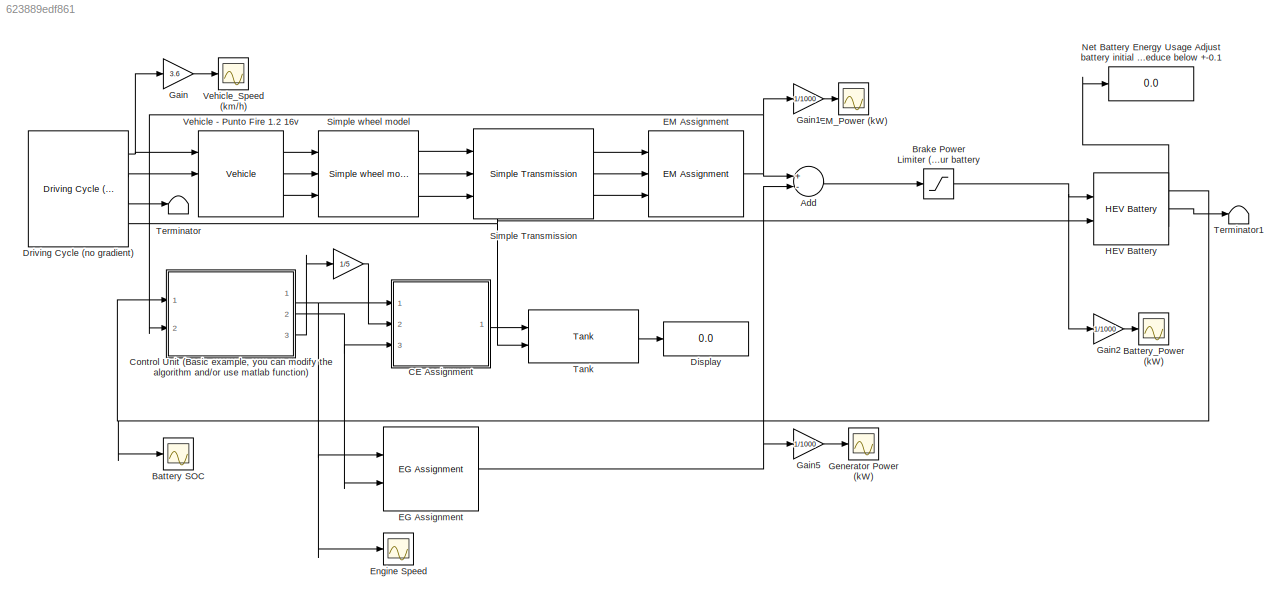
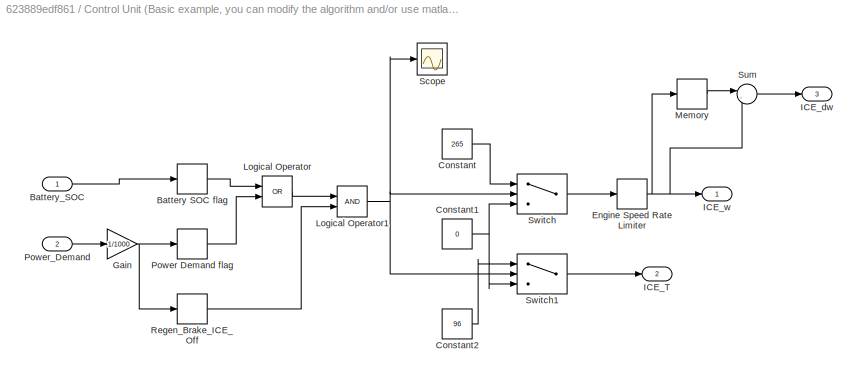
MODEL slx_623889edf861
KIND model
CONFIG AbsTol = auto
CONFIG EnableMultiTasking = off
CONFIG FixedStep = auto
CONFIG MaxStep = auto
CONFIG MinStep = auto
CONFIG RelTol = 1e-3
CONFIG SampleTimeConstraint = Unconstrained
CONFIG Solver = VariableStepAuto
CONFIG SolverName = VariableStepAuto
CONFIG StartTime = 0.0
CONFIG StopTime = 1061
BLOCK [Gain]  
  Gain = 1/5
  OutDataTypeStr = Inherit: Inherit via internal rule
  ParamDataTypeStr = Inherit: Inherit via internal rule
  SaturateOnIntegerOverflow = off
BLOCK [Sum] Add
  InputSameDT = off
  Inputs = +-
  OutDataTypeStr = Inherit: Inherit via internal rule
  Ports = [2, 1]
  SaturateOnIntegerOverflow = off
BLOCK [Scope] Battery SOC
  Floating = off
  NumInputPorts = 1
  Ports = [1]
  ScopeSpecificationString = Simulink.scopes.TimeScopeBlockCfg('CurrentConfiguration', extmgr.ConfigurationSet(extmgr.Configuration('Core','General UI',true),extmgr.Configuration('Core','Source UI',true),extmgr.Configuration('Sources','WiredSimulink',true,'DataLoggingVariableName','ScopeData1'),extmgr.Configuration('Visuals','Time Domain',true,'SerializedDisplays',{struct('MinYLimReal','0.58191','MaxYLimReal','0.71991','YLabe...<+1424ch>
BLOCK [Scope] Battery_Power (kW)
  Floating = off
  NumInputPorts = 1
  Ports = [1]
  ScopeSpecificationString = Simulink.scopes.TimeScopeBlockCfg('CurrentConfiguration', extmgr.ConfigurationSet(extmgr.Configuration('Core','General UI',true),extmgr.Configuration('Core','Source UI',true),extmgr.Configuration('Sources','WiredSimulink',true,'DataLoggingVariableName','ScopeData2'),extmgr.Configuration('Visuals','Time Domain',true,'SerializedDisplays',{struct('MinYLimReal','-37.4009','MaxYLimReal','37.06032','YLa...<+1397ch>
BLOCK [Saturate] Brake Power Limiter (W) Set a suitable lower value for your battery
  InputPortMap = u0
  LowerLimit = -40000
  Ports = [1, 1]
  UpperLimit = 500000
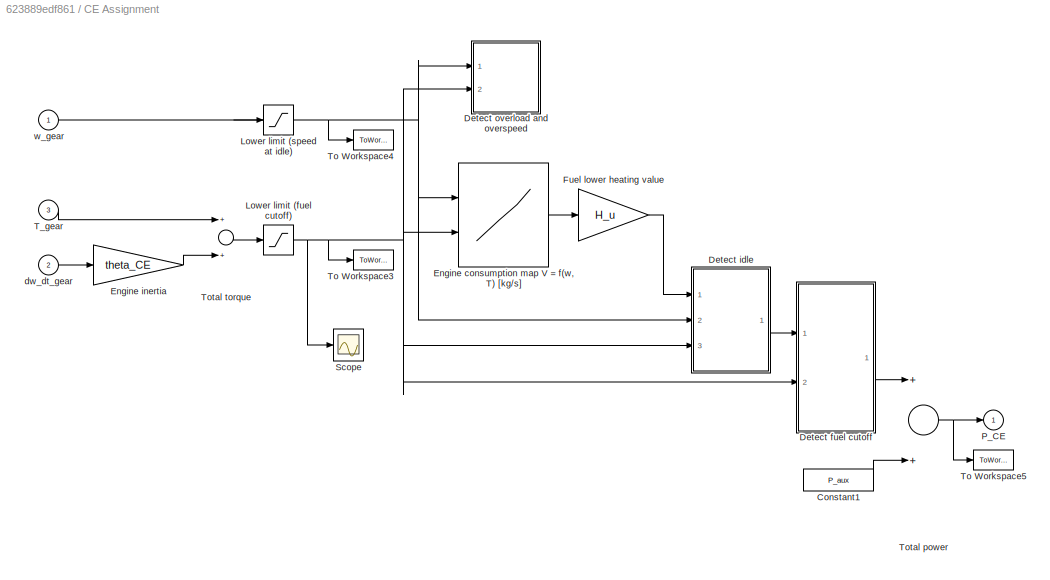
BLOCK [SubSystem] CE Assignment
  AncestorBlock = qss_tb_library/Energy Converter/CE Assignment
  Ports = [3, 1]
  RequestExecContextInheritance = off
  Tag = combustion engine
BLOCK [Constant] CE Assignment/Constant1
  Value = P_aux
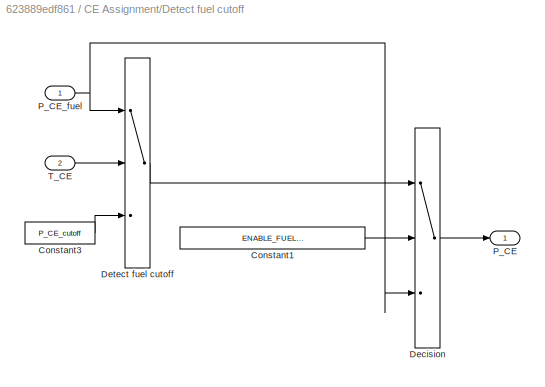
BLOCK [SubSystem] CE Assignment/Detect fuel cutoff
  Ports = [2, 1]
  RequestExecContextInheritance = off
BLOCK [Constant] CE Assignment/Detect fuel cutoff/Constant1
  Value = ENABLE_FUEL_CUTOFF
BLOCK [Constant] CE Assignment/Detect fuel cutoff/Constant3
  Value = P_CE_cutoff
BLOCK [Switch] CE Assignment/Detect fuel cutoff/Decision
  InputSameDT = off
  SaturateOnIntegerOverflow = off
  Threshold = 0.5
BLOCK [Switch] CE Assignment/Detect fuel cutoff/Detect fuel cutoff
  Threshold = T_CE_cutoff + 0.01
BLOCK [Outport] CE Assignment/Detect fuel cutoff/P_CE
  IconDisplay = Port number
BLOCK [Inport] CE Assignment/Detect fuel cutoff/P_CE_fuel
  IconDisplay = Port number
BLOCK [Inport] CE Assignment/Detect fuel cutoff/T_CE
  IconDisplay = Port number
  Port = 2
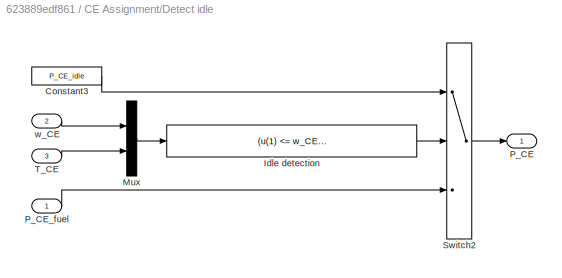
BLOCK [SubSystem] CE Assignment/Detect idle
  Ports = [3, 1]
  RequestExecContextInheritance = off
BLOCK [Constant] CE Assignment/Detect idle/Constant3
  Value = P_CE_idle
BLOCK [Fcn] CE Assignment/Detect idle/Idle detection
  Expr = (u(1) <= w_CE_idle) * (u(2) <= T_CE_idle)
BLOCK [Mux] CE Assignment/Detect idle/Mux
  DisplayOption = bar
  Inputs = 2
  Ports = [2, 1]
BLOCK [Outport] CE Assignment/Detect idle/P_CE
  IconDisplay = Port number
  InitialOutput = 0
BLOCK [Inport] CE Assignment/Detect idle/P_CE_fuel
  IconDisplay = Port number
BLOCK [Switch] CE Assignment/Detect idle/Switch2
  Threshold = 0.5
BLOCK [Inport] CE Assignment/Detect idle/T_CE
  IconDisplay = Port number
  Port = 3
BLOCK [Inport] CE Assignment/Detect idle/w_CE
  IconDisplay = Port number
  Port = 2
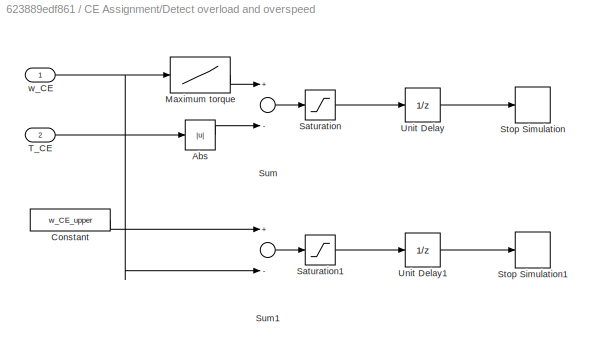
BLOCK [SubSystem] CE Assignment/Detect overload and overspeed
  Ports = [2]
  RequestExecContextInheritance = off
BLOCK [Abs] CE Assignment/Detect overload and overspeed/Abs
BLOCK [Constant] CE Assignment/Detect overload and overspeed/Constant
  Value = w_CE_upper
BLOCK [Lookup] CE Assignment/Detect overload and overspeed/Maximum torque
  InputValues = w_CE_max
  Table = T_CE_max
BLOCK [Saturate] CE Assignment/Detect overload and overspeed/Saturation
  InputPortMap = u0
  LowerLimit = -inf
  Ports = [1, 1]
  UpperLimit = 0
BLOCK [Saturate] CE Assignment/Detect overload and overspeed/Saturation1
  InputPortMap = u0
  LowerLimit = -inf
  Ports = [1, 1]
  UpperLimit = 0
BLOCK [Stop] CE Assignment/Detect overload and overspeed/Stop Simulation
BLOCK [Stop] CE Assignment/Detect overload and overspeed/Stop Simulation1
BLOCK [Sum] CE Assignment/Detect overload and overspeed/Sum
  Inputs = +-
  Ports = [2, 1]
BLOCK [Sum] CE Assignment/Detect overload and overspeed/Sum1
  Inputs = +-
  Ports = [2, 1]
BLOCK [Inport] CE Assignment/Detect overload and overspeed/T_CE
  IconDisplay = Port number
  Port = 2
BLOCK [UnitDelay] CE Assignment/Detect overload and overspeed/Unit Delay
  HasFrameUpgradeWarning = on
  SampleTime = -1
BLOCK [UnitDelay] CE Assignment/Detect overload and overspeed/Unit Delay1
  HasFrameUpgradeWarning = on
  SampleTime = -1
BLOCK [Inport] CE Assignment/Detect overload and overspeed/w_CE
  IconDisplay = Port number
BLOCK [Lookup2D] CE Assignment/Engine consumption map V = f(w, T) [kg//s]
  ColumnIndex = T_CE_col
  InputSameDT = off
  RowIndex = w_CE_row
  SaturateOnIntegerOverflow = off
  Table = V_CE_map
BLOCK [Gain] CE Assignment/Engine inertia
  Gain = theta_CE
BLOCK [Gain] CE Assignment/Fuel lower heating value
  Gain = H_u
BLOCK [Saturate] CE Assignment/Lower limit (fuel cutoff)
  InputPortMap = u0
  LowerLimit = T_CE_cutoff
  Ports = [1, 1]
  UpperLimit = inf
BLOCK [Saturate] CE Assignment/Lower limit (speed at idle)
  InputPortMap = u0
  LowerLimit = w_CE_idle
  Ports = [1, 1]
  UpperLimit = inf
BLOCK [Outport] CE Assignment/P_CE
  IconDisplay = Port number
  InitialOutput = 0
BLOCK [Scope] CE Assignment/Scope
  Floating = off
  NumInputPorts = 1
  Ports = [1]
  ScopeSpecificationString = Simulink.scopes.TimeScopeBlockCfg('CurrentConfiguration', extmgr.ConfigurationSet(extmgr.Configuration('Core','General UI',true),extmgr.Configuration('Core','Source UI',true),extmgr.Configuration('Sources','WiredSimulink',true,'DataLoggingVariableName','ScopeData7'),extmgr.Configuration('Visuals','Time Domain',true,'SerializedDisplays',{struct('MinYLimReal','-8.75','MaxYLimReal','128.75','YLabelRe...<+1374ch>
BLOCK [Inport] CE Assignment/T_gear
  IconDisplay = Port number
  Port = 3
BLOCK [ToWorkspace] CE Assignment/To Workspace3
  MaxDataPoints = inf
  Ports = [1]
  SampleTime = -1
  VariableName = T_CE
BLOCK [ToWorkspace] CE Assignment/To Workspace4
  MaxDataPoints = inf
  Ports = [1]
  SampleTime = -1
  VariableName = w_CE
BLOCK [ToWorkspace] CE Assignment/To Workspace5
  MaxDataPoints = inf
  Ports = [1]
  SampleTime = -1
  VariableName = P_CE
BLOCK [Sum] CE Assignment/Total power
  Ports = [2, 1]
BLOCK [Sum] CE Assignment/Total torque
  Ports = [2, 1]
BLOCK [Inport] CE Assignment/dw_dt_gear
  IconDisplay = Port number
  Port = 2
BLOCK [Inport] CE Assignment/w_gear
  IconDisplay = Port number
BLOCK [SubSystem] Control Unit (Basic example, you can modify the algorithm and//or use matlab function)
  AncestorBlock = qss_tb_library/Controller/Control Unit\n(empty template)
  Ports = [2, 3]
  RequestExecContextInheritance = off
  Tag = control unit
BLOCK [Relay] Control Unit (Basic example, you can modify the algorithm and//or use matlab function)/Battery SOC flag
  OffOutputValue = 1
  OffSwitchValue = 0.639
  OnOutputValue = 0
  OnSwitchValue = 0.669
BLOCK [Inport] Control Unit (Basic example, you can modify the algorithm and//or use matlab function)/Battery_SOC
  IconDisplay = Port number
BLOCK [Constant] Control Unit (Basic example, you can modify the algorithm and//or use matlab function)/Constant
  Value = 265
BLOCK [Constant] Control Unit (Basic example, you can modify the algorithm and//or use matlab function)/Constant1
  Value = 0
BLOCK [Constant] Control Unit (Basic example, you can modify the algorithm and//or use matlab function)/Constant2
  Value = 96
BLOCK [RateLimiter] Control Unit (Basic example, you can modify the algorithm and//or use matlab function)/Engine Speed Rate Limiter
  FallingSlewLimit = -150
  RisingSlewLimit = 150
  SampleTimeMode = inherited
BLOCK [Gain] Control Unit (Basic example, you can modify the algorithm and//or use matlab function)/Gain
  Gain = 1/1000
  OutDataTypeStr = Inherit: Inherit via internal rule
  ParamDataTypeStr = Inherit: Inherit via internal rule
  SaturateOnIntegerOverflow = off
BLOCK [Outport] Control Unit (Basic example, you can modify the algorithm and//or use matlab function)/ICE_T
  IconDisplay = Port number
  InitialOutput = 0
  Port = 2
BLOCK [Outport] Control Unit (Basic example, you can modify the algorithm and//or use matlab function)/ICE_dw 
  IconDisplay = Port number
  InitialOutput = 0
  Port = 3
BLOCK [Outport] Control Unit (Basic example, you can modify the algorithm and//or use matlab function)/ICE_w
  IconDisplay = Port number
  InitialOutput = 0
BLOCK [Logic] Control Unit (Basic example, you can modify the algorithm and//or use matlab function)/Logical Operator
  AllPortsSameDT = off
  Operator = OR
  OutDataTypeStr = boolean
  Ports = [2, 1]
BLOCK [Logic] Control Unit (Basic example, you can modify the algorithm and//or use matlab function)/Logical Operator1
  AllPortsSameDT = off
  OutDataTypeStr = boolean
  Ports = [2, 1]
BLOCK [Memory] Control Unit (Basic example, you can modify the algorithm and//or use matlab function)/Memory
BLOCK [Relay] Control Unit (Basic example, you can modify the algorithm and//or use matlab function)/Power Demand flag
  OffSwitchValue = 10
  OnSwitchValue = 20
BLOCK [Inport] Control Unit (Basic example, you can modify the algorithm and//or use matlab function)/Power_Demand
  IconDisplay = Port number
  Port = 2
BLOCK [Relay] Control Unit (Basic example, you can modify the algorithm and//or use matlab function)/Regen_Brake_ICE_Off 
  OffSwitchValue = -5
  OnSwitchValue = 0
BLOCK [Scope] Control Unit (Basic example, you can modify the algorithm and//or use matlab function)/Scope
  Floating = off
  NumInputPorts = 1
  Ports = [1]
  ScopeSpecificationString = Simulink.scopes.TimeScopeBlockCfg('CurrentConfiguration', extmgr.ConfigurationSet(extmgr.Configuration('Core','General UI',true),extmgr.Configuration('Core','Source UI',true),extmgr.Configuration('Sources','WiredSimulink',true,'DataLoggingVariableName','ScopeData2'),extmgr.Configuration('Visuals','Time Domain',true,'SerializedDisplays',{struct('MinYLimReal','-0.125','MaxYLimReal','1.125','YLabelRe...<+1395ch>
BLOCK [Sum] Control Unit (Basic example, you can modify the algorithm and//or use matlab function)/Sum
  IconShape = round
  InputSameDT = off
  Inputs = |-+
  OutDataTypeStr = Inherit: Inherit via internal rule
  Ports = [2, 1]
  SaturateOnIntegerOverflow = off
BLOCK [Switch] Control Unit (Basic example, you can modify the algorithm and//or use matlab function)/Switch
  Criteria = u2 > Threshold
  InputSameDT = off
  SaturateOnIntegerOverflow = off
BLOCK [Switch] Control Unit (Basic example, you can modify the algorithm and//or use matlab function)/Switch1
  Criteria = u2 > Threshold
  InputSameDT = off
  SaturateOnIntegerOverflow = off
BLOCK [Display] Display
  Decimation = 1
  Ports = [1]
BLOCK [Reference] Driving Cycle (no gradient)  REF=qss_tb_library/Driving Cycle/Driving Cycle (no gradient)  (lib defined in mdl_a75e96b0ff2a, mdl_aad2a3137e65)
  Ports = [0, 4]
  SourceBlock = qss_tb_library/Driving Cycle/Driving Cycle (no gradient)
  SourceType = Driving Cycle
  Tag = cycle
BLOCK [Reference] EG Assignment  REF=qss_tb_library/Energy Converter/EG Assignment  (lib defined in mdl_a75e96b0ff2a, mdl_aad2a3137e65)
  Ports = [2, 1]
  SourceBlock = qss_tb_library/Energy Converter/EG Assignment
  SourceType = Electric Generator
BLOCK [Reference] EM Assignment  REF=qss_tb_library/Energy Converter/EM Assignment  (lib defined in mdl_a75e96b0ff2a, mdl_aad2a3137e65)
  Ports = [3, 1]
  SourceBlock = qss_tb_library/Energy Converter/EM Assignment
  SourceType = Electric Motor
BLOCK [Scope] EM_Power (kW)
  Floating = off
  NumInputPorts = 1
  Ports = [1]
  ScopeSpecificationString = Simulink.scopes.TimeScopeBlockCfg('CurrentConfiguration', extmgr.ConfigurationSet(extmgr.Configuration('Core','General UI',true),extmgr.Configuration('Core','Source UI',true),extmgr.Configuration('Sources','WiredSimulink',true,'DataLoggingVariableName','ScopeData3'),extmgr.Configuration('Visuals','Time Domain',true,'SerializedDisplays',{struct('MinYLimReal','-33.69524','MaxYLimReal','51.74072','YL...<+1370ch>
BLOCK [Scope] Engine Speed
  Floating = off
  NumInputPorts = 1
  Ports = [1]
  ScopeSpecificationString = Simulink.scopes.TimeScopeBlockCfg('CurrentConfiguration', extmgr.ConfigurationSet(extmgr.Configuration('Core','General UI',true),extmgr.Configuration('Core','Source UI',true),extmgr.Configuration('Sources','WiredSimulink',true,'DataLoggingVariableName','ScopeData4'),extmgr.Configuration('Visuals','Time Domain',true,'SerializedDisplays',{struct('MinYLimReal','-36.25','MaxYLimReal','326.25','YLabelR...<+1488ch>
BLOCK [Gain] Gain
  Gain = 3.6
  OutDataTypeStr = Inherit: Inherit via internal rule
  ParamDataTypeStr = Inherit: Inherit via internal rule
  SaturateOnIntegerOverflow = off
BLOCK [Gain] Gain1
  Gain = 1/1000
  OutDataTypeStr = Inherit: Inherit via internal rule
  ParamDataTypeStr = Inherit: Inherit via internal rule
  SaturateOnIntegerOverflow = off
BLOCK [Gain] Gain2
  Gain = 1/1000
  OutDataTypeStr = Inherit: Inherit via internal rule
  ParamDataTypeStr = Inherit: Inherit via internal rule
  SaturateOnIntegerOverflow = off
BLOCK [Gain] Gain5
  Gain = 1/1000
  OutDataTypeStr = Inherit: Inherit via internal rule
  ParamDataTypeStr = Inherit: Inherit via internal rule
  SaturateOnIntegerOverflow = off
BLOCK [Scope] Generator Power (kW)
  Floating = off
  NumInputPorts = 1
  Ports = [1]
  ScopeSpecificationString = Simulink.scopes.TimeScopeBlockCfg('CurrentConfiguration', extmgr.ConfigurationSet(extmgr.Configuration('Core','General UI',true),extmgr.Configuration('Core','Source UI',true),extmgr.Configuration('Sources','WiredSimulink',true,'DataLoggingVariableName','ScopeData5'),extmgr.Configuration('Visuals','Time Domain',true,'SerializedDisplays',{struct('MinYLimReal','-3.1387','MaxYLimReal','28.24827','YLab...<+1385ch>
BLOCK [Reference] HEV Battery  REF=qss_tb_library/Energy Buffer/HEV Battery  (lib defined in mdl_a75e96b0ff2a, mdl_aad2a3137e65)
  Ports = [2, 3]
  SourceBlock = qss_tb_library/Energy Buffer/HEV Battery
  SourceType = Battery
  Tag = battery
BLOCK [Display] Net Battery Energy Usage Adjust battery initial SOC to reduce below +-0.1
  Decimation = 1
  Ports = [1]
BLOCK [Reference] Simple Transmission  REF=qss_tb_library/Gear System/Simple Transmission  (lib defined in mdl_a75e96b0ff2a, mdl_aad2a3137e65)
  Ports = [3, 3]
  SourceBlock = qss_tb_library/Gear System/Simple Transmission
  SourceType = Simple Transmission
  Tag = simple transmission
BLOCK [Reference] Simple wheel model  REF=qss_tb_library/Vehicle/Simple wheel model  (lib defined in mdl_a75e96b0ff2a, mdl_aad2a3137e65)
  Ports = [3, 3]
  SourceBlock = qss_tb_library/Vehicle/Simple wheel model
  SourceType = Simple wheel model
  Tag = simple transmission
BLOCK [Reference] Tank  REF=qss_tb_library/Energy Source/Tank  (lib defined in mdl_a75e96b0ff2a, mdl_aad2a3137e65)
  Ports = [2, 1]
  SourceBlock = qss_tb_library/Energy Source/Tank
  SourceType = Tank
  Tag = tank
BLOCK [Terminator] Terminator
BLOCK [Terminator] Terminator1
BLOCK [Reference] Vehicle - Punto Fire 1.2 16v  REF=qss_tb_library/Vehicle/Vehicle  (lib defined in mdl_a75e96b0ff2a, mdl_aad2a3137e65)
  Ports = [3, 3]
  SourceBlock = qss_tb_library/Vehicle/Vehicle
  SourceType = Vehicle
  Tag = vehicle
BLOCK [Scope] Vehicle_Speed (km//h)
  Floating = off
  NumInputPorts = 1
  Ports = [1]
  ScopeSpecificationString = Simulink.scopes.TimeScopeBlockCfg('CurrentConfiguration', extmgr.ConfigurationSet(extmgr.Configuration('Core','General UI',true),extmgr.Configuration('Core','Source UI',true),extmgr.Configuration('Sources','WiredSimulink',true),extmgr.Configuration('Visuals','Time Domain',true,'SerializedDisplays',{struct('MinYLimReal','-6.9','MaxYLimReal','62.1','YLabelReal','','MinYLimMag','0.00000','MaxYLimMag'...<+1304ch>
LINE  :1 -> CE Assignment:2
LINE Add:1 -> Brake Power Limiter (W) Set a suitable lower value for your battery:1
NET Brake Power Limiter (W) Set a suitable lower value for your battery:1 -> Gain2:1, HEV Battery:1
LINE CE Assignment:1 -> Tank:1
NET Control Unit (Basic example, you can modify the algorithm and//or use matlab function):1 -> CE Assignment:1, EG Assignment:1, Engine Speed:1
NET Control Unit (Basic example, you can modify the algorithm and//or use matlab function):2 -> CE Assignment:3, EG Assignment:2
LINE Control Unit (Basic example, you can modify the algorithm and//or use matlab function):3 ->  :1
NET Driving Cycle (no gradient):1 -> Gain:1, Vehicle - Punto Fire 1.2 16v:1
LINE Driving Cycle (no gradient):2 -> Vehicle - Punto Fire 1.2 16v:2
LINE Driving Cycle (no gradient):3 -> Terminator:1
NET Driving Cycle (no gradient):4 -> HEV Battery:2, Tank:2
NET EG Assignment:1 -> Add:2, Gain5:1
NET EM Assignment:1 -> Add:1, Control Unit (Basic example, you can modify the algorithm and//or use matlab function):2, Gain1:1
LINE Gain1:1 -> EM_Power (kW):1
LINE Gain2:1 -> Battery_Power (kW):1
LINE Gain5:1 -> Generator Power (kW):1
LINE Gain:1 -> Vehicle_Speed (km//h):1
NET HEV Battery:1 -> Battery SOC:1, Control Unit (Basic example, you can modify the algorithm and//or use matlab function):1
LINE HEV Battery:2 -> Terminator1:1
LINE HEV Battery:3 -> Net Battery Energy Usage Adjust battery initial SOC to reduce below +-0.1:1
LINE Simple Transmission:1 -> EM Assignment:1
LINE Simple Transmission:2 -> EM Assignment:2
LINE Simple Transmission:3 -> EM Assignment:3
LINE Simple wheel model:1 -> Simple Transmission:1
LINE Simple wheel model:2 -> Simple Transmission:2
LINE Simple wheel model:3 -> Simple Transmission:3
LINE Tank:1 -> Display:1
LINE Vehicle - Punto Fire 1.2 16v:1 -> Simple wheel model:1
LINE Vehicle - Punto Fire 1.2 16v:2 -> Simple wheel model:2
LINE Vehicle - Punto Fire 1.2 16v:3 -> Simple wheel model:3
note: NET lines group one-source signal fan-out (src -> all destinations, sorted); 1:1 wires keep LINE
